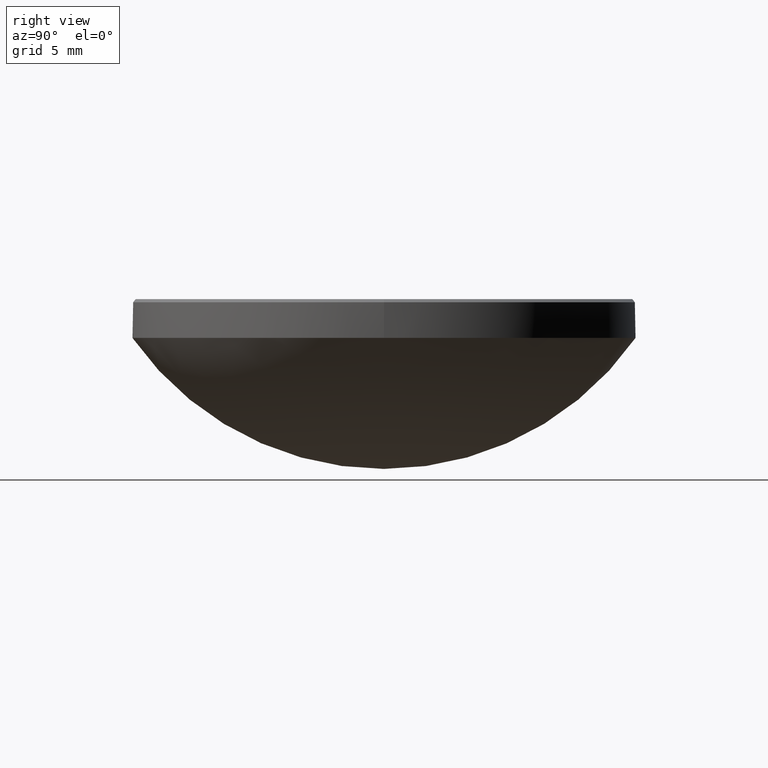
[diagram: clean part render]
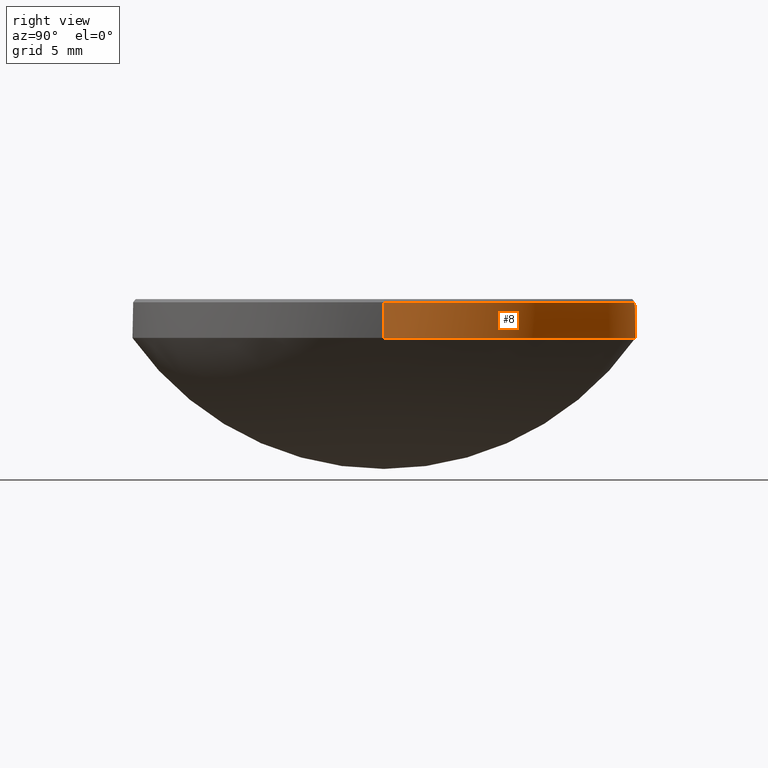
[diagram: same view with one face highlighted and labeled with its STEP entity id]
A machine part, right view. The second image highlights one B-rep face of the part: STEP entity #8.
In plain terms, the highlighted cylindrical surface (partial cylindrical patch) has radius 12.7 mm, axis along (-0, -0, -1).
Its self-contained STEP definition (entity closure, byte-faithful):
#3 = CARTESIAN_POINT ( 'NONE',  ( -12.69999999999999751, 0.000000000000000000, 10.00000000000000000 ) ) ;
#4 = CIRCLE ( 'NONE', #130, 12.69999999999999751 ) ;
#8 = ADVANCED_FACE ( 'NONE', ( #144 ), #80, .T. ) ;
#22 = EDGE_CURVE ( 'NONE', #150, #255, #269, .T. ) ;
#27 = CARTESIAN_POINT ( 'NONE',  ( 0.000000000000000000, 0.000000000000000000, 10.00000000000000000 ) ) ;
#33 = CARTESIAN_POINT ( 'NONE',  ( -12.69999999999999929, 0.000000000000000000, 11.79999999999999716 ) ) ;
#35 = ORIENTED_EDGE ( 'NONE', *, *, #213, .T. ) ;
#43 = VECTOR ( 'NONE', #75, 1000.000000000000000 ) ;
#46 = EDGE_CURVE ( 'NONE', #189, #244, #4, .T. ) ;
#51 = DIRECTION ( 'NONE',  ( -0.000000000000000000, -0.000000000000000000, -1.000000000000000000 ) ) ;
#52 = CARTESIAN_POINT ( 'NONE',  ( -12.69999999999999929, 0.000000000000000000, 20.00000000000000000 ) ) ;
#71 = VECTOR ( 'NONE', #51, 1000.000000000000000 ) ;
#73 = DIRECTION ( 'NONE',  ( -1.000000000000000000, 0.000000000000000000, 0.000000000000000000 ) ) ;
#75 = DIRECTION ( 'NONE',  ( -0.000000000000000000, -0.000000000000000000, -1.000000000000000000 ) ) ;
#77 = CARTESIAN_POINT ( 'NONE',  ( 12.69999999999999929, 1.555301434917138433E-15, 11.79999999999999716 ) ) ;
#80 = CYLINDRICAL_SURFACE ( 'NONE', #159, 12.69999999999999929 ) ;
#83 = ORIENTED_EDGE ( 'NONE', *, *, #114, .T. ) ;
#98 = DIRECTION ( 'NONE',  ( -0.000000000000000000, -0.000000000000000000, 1.000000000000000000 ) ) ;
#99 = VERTEX_POINT ( 'NONE', #77 ) ;
#106 = ORIENTED_EDGE ( 'NONE', *, *, #280, .T. ) ;
#109 = CARTESIAN_POINT ( 'NONE',  ( 0.000000000000000000, 0.000000000000000000, 11.79999999999999716 ) ) ;
#110 = CIRCLE ( 'NONE', #248, 12.69999999999999751 ) ;
#114 = EDGE_CURVE ( 'NONE', #99, #189, #116, .T. ) ;
#116 = LINE ( 'NONE', #120, #43 ) ;
#120 = CARTESIAN_POINT ( 'NONE',  ( 12.69999999999999929, 1.555301434917138433E-15, 20.00000000000000000 ) ) ;
#130 = AXIS2_PLACEMENT_3D ( 'NONE', #186, #98, #226 ) ;
#144 = FACE_OUTER_BOUND ( 'NONE', #216, .T. ) ;
#150 = VERTEX_POINT ( 'NONE', #33 ) ;
#151 = DIRECTION ( 'NONE',  ( 1.000000000000000000, 0.000000000000000000, 0.000000000000000000 ) ) ;
#157 = CIRCLE ( 'NONE', #259, 12.69999999999999929 ) ;
#159 = AXIS2_PLACEMENT_3D ( 'NONE', #243, #228, #73 ) ;
#186 = CARTESIAN_POINT ( 'NONE',  ( 0.000000000000000000, 0.000000000000000000, 10.00000000000000000 ) ) ;
#189 = VERTEX_POINT ( 'NONE', #238 ) ;
#196 = DIRECTION ( 'NONE',  ( 0.000000000000000000, 0.000000000000000000, -1.000000000000000000 ) ) ;
#213 = EDGE_CURVE ( 'NONE', #150, #99, #157, .T. ) ;
#216 = EDGE_LOOP ( 'NONE', ( #35, #83, #258, #106, #274 ) ) ;
#226 = DIRECTION ( 'NONE',  ( 1.000000000000000000, 0.000000000000000000, 0.000000000000000000 ) ) ;
#228 = DIRECTION ( 'NONE',  ( -0.000000000000000000, -0.000000000000000000, -1.000000000000000000 ) ) ;
#237 = DIRECTION ( 'NONE',  ( 1.000000000000000000, 0.000000000000000000, 0.000000000000000000 ) ) ;
#238 = CARTESIAN_POINT ( 'NONE',  ( 12.69999999999999751, 1.555301434917138235E-15, 10.00000000000000000 ) ) ;
#243 = CARTESIAN_POINT ( 'NONE',  ( 0.000000000000000000, 0.000000000000000000, 20.00000000000000000 ) ) ;
#244 = VERTEX_POINT ( 'NONE', #252 ) ;
#248 = AXIS2_PLACEMENT_3D ( 'NONE', #27, #260, #237 ) ;
#252 = CARTESIAN_POINT ( 'NONE',  ( 0.000000000000000000, 12.69999999999999574, 10.00000000000000000 ) ) ;
#255 = VERTEX_POINT ( 'NONE', #3 ) ;
#258 = ORIENTED_EDGE ( 'NONE', *, *, #46, .T. ) ;
#259 = AXIS2_PLACEMENT_3D ( 'NONE', #109, #196, #151 ) ;
#260 = DIRECTION ( 'NONE',  ( -0.000000000000000000, -0.000000000000000000, 1.000000000000000000 ) ) ;
#269 = LINE ( 'NONE', #52, #71 ) ;
#274 = ORIENTED_EDGE ( 'NONE', *, *, #22, .F. ) ;
#280 = EDGE_CURVE ( 'NONE', #244, #255, #110, .T. ) ;